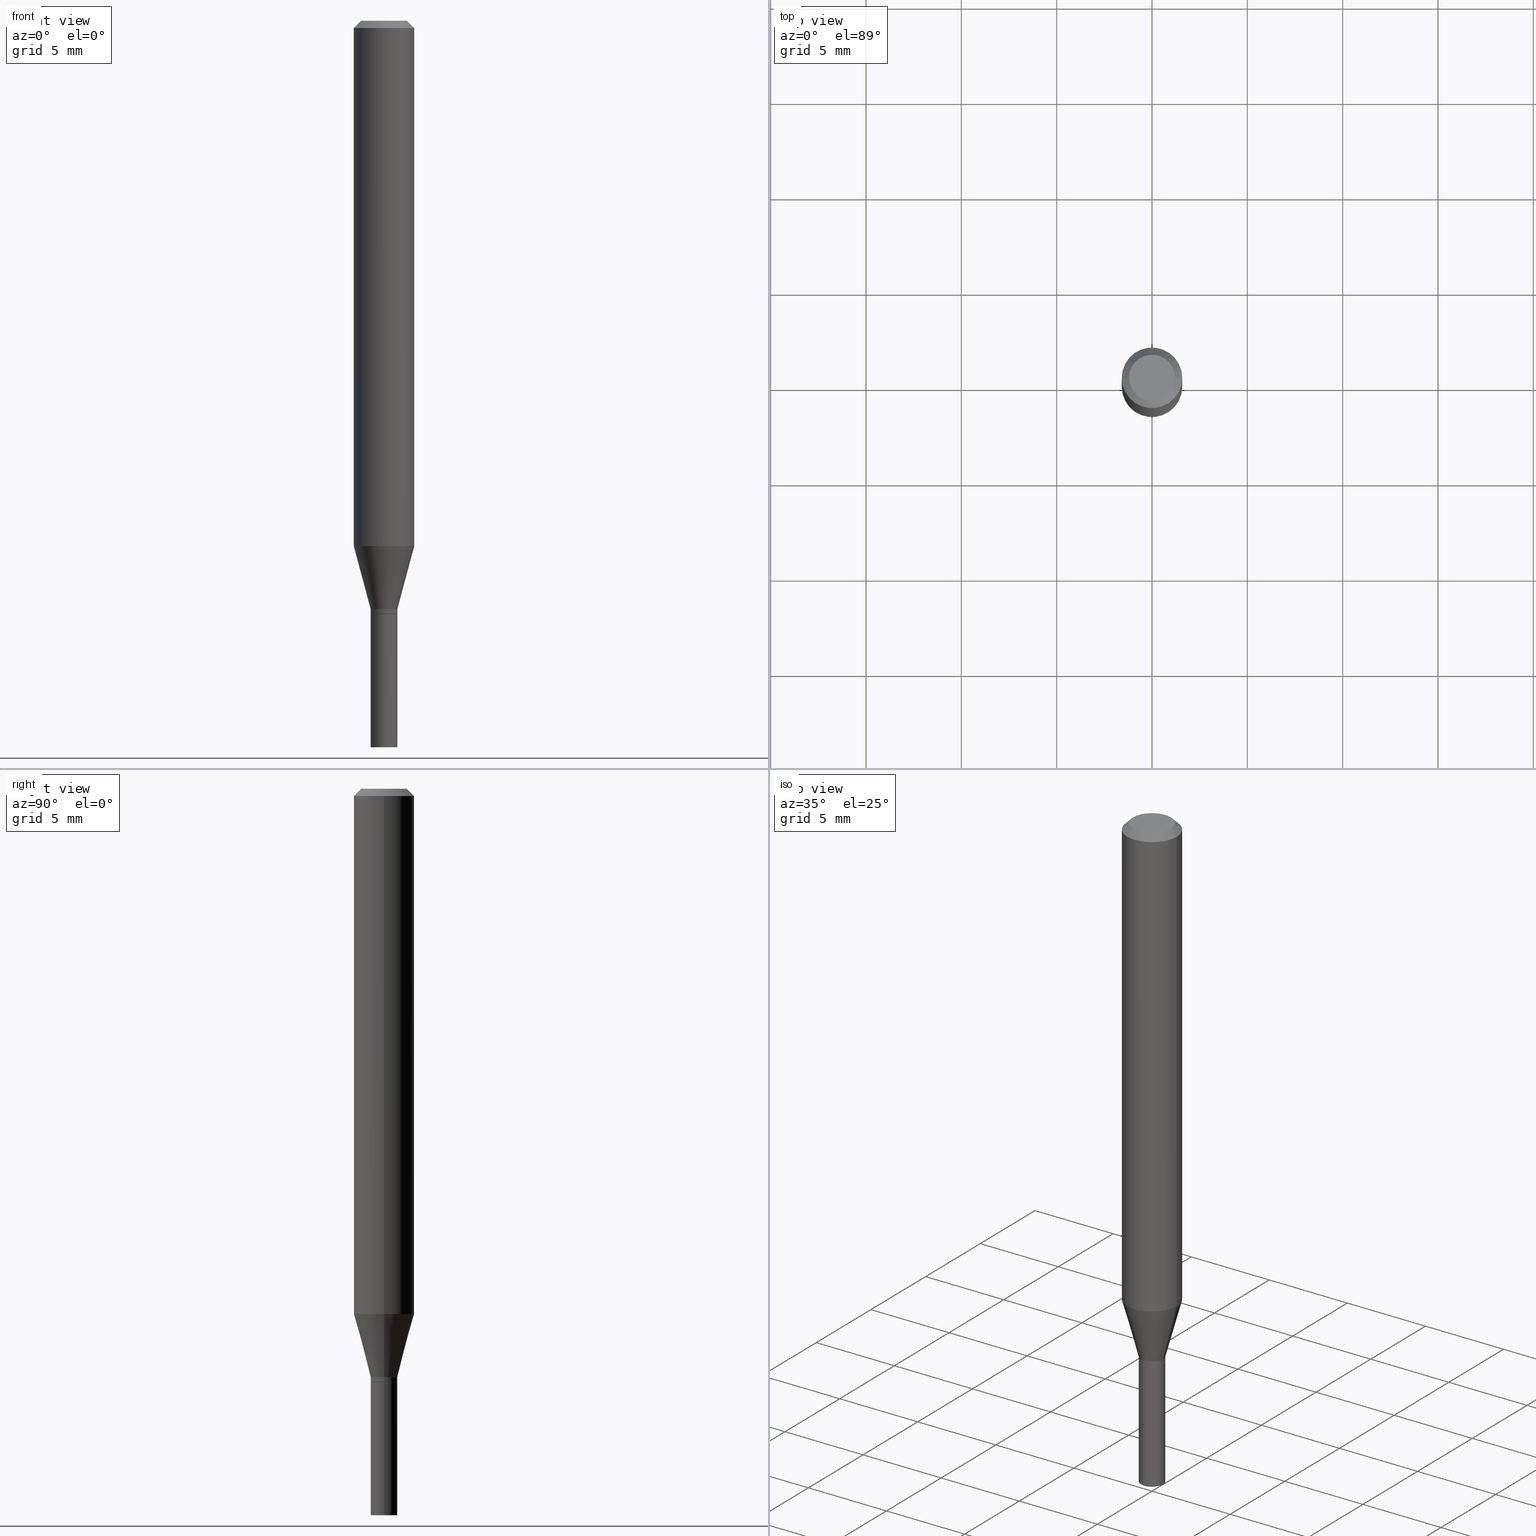
[diagram: canonical four-view strip — front | top / right | iso, engineering-drawing reading convention]
A machine part, canonical four-view strip (front | top / right | iso — engineering-drawing reading convention). The complete STEP part file that produces these views, byte-faithful:
ISO-10303-21;
HEADER;
FILE_DESCRIPTION (( 'STEP AP203' ),
    '1' );
FILE_NAME ('02651.STEP',
    '2024-03-18T21:05:56',
    ( '' ),
    ( '' ),
    'SwSTEP 2.0',
    'SolidWorks 2023',
    '' );
FILE_SCHEMA (( 'CONFIG_CONTROL_DESIGN' ));
ENDSEC;

DATA;
#1 = ORIENTED_EDGE ( 'NONE', *, *, #281, .F. ) ;
#2 = ORIENTED_EDGE ( 'NONE', *, *, #94, .T. ) ;
#3 = ADVANCED_FACE ( 'NONE', ( #403 ), #16, .T. ) ;
#4 = ORIENTED_EDGE ( 'NONE', *, *, #83, .F. ) ;
#5 = DIRECTION ( 'NONE',  ( 2.445468806185136597E-29, -3.491481338843145583E-15, -1.000000000000000000 ) ) ;
#6 = ORIENTED_EDGE ( 'NONE', *, *, #69, .T. ) ;
#7 = AXIS2_PLACEMENT_3D ( 'NONE', #54, #225, #46 ) ;
#8 = LOCAL_TIME ( 17, 5, 56.00000000000000000, #47 ) ;
#9 = ORIENTED_EDGE ( 'NONE', *, *, #20, .T. ) ;
#10 = CARTESIAN_POINT ( 'NONE',  ( -0.02699999999999999969, -4.085218101427626128E-15, -1.225000000000000089 ) ) ;
#11 = CARTESIAN_POINT ( 'NONE',  ( 0.000000000000000000, 0.000000000000000000, 0.000000000000000000 ) ) ;
#12 = ORIENTED_EDGE ( 'NONE', *, *, #363, .F. ) ;
#13 = EDGE_CURVE ( 'NONE', #367, #176, #313, .T. ) ;
#14 = EDGE_LOOP ( 'NONE', ( #34, #220, #256, #105 ) ) ;
#15 = APPROVAL_STATUS ( 'not_yet_approved' ) ;
#16 = CONICAL_SURFACE ( 'NONE', #128, 0.02750000000000006953, 0.2617993877991501850 ) ;
#17 = FACE_OUTER_BOUND ( 'NONE', #440, .T. ) ;
#18 = DATE_AND_TIME ( #191, #8 ) ;
#19 = CARTESIAN_POINT ( 'NONE',  ( 1.920314736364022965E-16, 0.02749999999999572578, -1.225000000000000089 ) ) ;
#20 = EDGE_CURVE ( 'NONE', #398, #40, #162, .T. ) ;
#21 = DIRECTION ( 'NONE',  ( 1.000000000000000000, -6.982962677686280121E-15, 0.000000000000000000 ) ) ;
#22 = LINE ( 'NONE', #425, #67 ) ;
#23 = PLANE ( 'NONE',  #387 ) ;
#24 = CARTESIAN_POINT ( 'NONE',  ( 0.02750000000000000014, -1.920314736363723444E-16, 1.340948613343882413E-30 ) ) ;
#25 = SHAPE_DEFINITION_REPRESENTATION ( #351, #390 ) ;
#26 = UNCERTAINTY_MEASURE_WITH_UNIT (LENGTH_MEASURE( 1.000000000000000082E-05 ), #260, 'distance_accuracy_value', 'NONE');
#27 = CARTESIAN_POINT ( 'NONE',  ( 2.995699287576792443E-29, -4.277064640082853349E-15, -1.225000000000000089 ) ) ;
#28 = ADVANCED_FACE ( 'NONE', ( #90 ), #41, .T. ) ;
#29 = CARTESIAN_POINT ( 'NONE',  ( 0.000000000000000000, 0.000000000000000000, 0.000000000000000000 ) ) ;
#30 = CIRCLE ( 'NONE', #251, 0.06250000000000000000 ) ;
#31 = AXIS2_PLACEMENT_3D ( 'NONE', #366, #188, #408 ) ;
#32 = EDGE_CURVE ( 'NONE', #207, #244, #360, .T. ) ;
#33 = ORIENTED_EDGE ( 'NONE', *, *, #255, .F. ) ;
#34 = ORIENTED_EDGE ( 'NONE', *, *, #32, .T. ) ;
#35 = CARTESIAN_POINT ( 'NONE',  ( 2.971244599514940898E-29, -4.242149826694421699E-15, -1.215000000000000080 ) ) ;
#36 = ORIENTED_EDGE ( 'NONE', *, *, #13, .T. ) ;
#37 = FACE_OUTER_BOUND ( 'NONE', #117, .T. ) ;
#38 = ORIENTED_EDGE ( 'NONE', *, *, #402, .F. ) ;
#39 = ORIENTED_EDGE ( 'NONE', *, *, #413, .F. ) ;
#40 = VERTEX_POINT ( 'NONE', #352 ) ;
#41 = CONICAL_SURFACE ( 'NONE', #218, 0.02699999999999999969, 0.7853981633974739252 ) ;
#42 = FACE_OUTER_BOUND ( 'NONE', #63, .T. ) ;
#43 = FACE_OUTER_BOUND ( 'NONE', #173, .T. ) ;
#44 = ORIENTED_EDGE ( 'NONE', *, *, #32, .F. ) ;
#45 = DATE_TIME_ROLE ( 'creation_date' ) ;
#46 = DIRECTION ( 'NONE',  ( 1.000000000000000000, -6.982962677686266711E-15, 4.876176775795935793E-29 ) ) ;
#47 = COORDINATED_UNIVERSAL_TIME_OFFSET ( 5, 0, .BEHIND. ) ;
#48 = AXIS2_PLACEMENT_3D ( 'NONE', #193, #306, #274 ) ;
#49 = CARTESIAN_POINT ( 'NONE',  ( 0.06250000000000000000, -4.222521492791372833E-15, -1.084378221735089909 ) ) ;
#50 = ADVANCED_FACE ( 'NONE', ( #134 ), #312, .T. ) ;
#51 = DIRECTION ( 'NONE',  ( 1.000000000000000000, -6.982962677686279332E-15, 0.000000000000000000 ) ) ;
#52 = PLANE ( 'NONE',  #140 ) ;
#53 = CC_DESIGN_PERSON_AND_ORGANIZATION_ASSIGNMENT ( #124, #266, ( #409 ) ) ;
#54 = CARTESIAN_POINT ( 'NONE',  ( 0.000000000000000000, 0.000000000000000000, 0.000000000000000000 ) ) ;
#55 = DIRECTION ( 'NONE',  ( -2.445468806185136597E-29, 3.491481338843145583E-15, 1.000000000000000000 ) ) ;
#56 = DIRECTION ( 'NONE',  ( -2.445468806185136597E-29, 3.491481338843145583E-15, 1.000000000000000000 ) ) ;
#57 = DIRECTION ( 'NONE',  ( -2.445468806185136597E-29, 3.491481338843145583E-15, 1.000000000000000000 ) ) ;
#58 = AXIS2_PLACEMENT_3D ( 'NONE', #235, #310, #200 ) ;
#59 = DIRECTION ( 'NONE',  ( -2.445468806185136597E-29, 3.491481338843145583E-15, 1.000000000000000000 ) ) ;
#60 = FACE_OUTER_BOUND ( 'NONE', #459, .T. ) ;
#61 = CIRCLE ( 'NONE', #445, 0.02750000000000006259 ) ;
#62 = AXIS2_PLACEMENT_3D ( 'NONE', #35, #76, #147 ) ;
#63 = EDGE_LOOP ( 'NONE', ( #39, #400, #73, #289 ) ) ;
#64 = CIRCLE ( 'NONE', #249, 0.02750000000000006953 ) ;
#65 = VECTOR ( 'NONE', #233, 39.37007874015748143 ) ;
#66 = DIRECTION ( 'NONE',  ( -2.445468806185136597E-29, 3.491481338843145583E-15, 1.000000000000000000 ) ) ;
#67 = VECTOR ( 'NONE', #197, 39.37007874015748143 ) ;
#68 = DIRECTION ( 'NONE',  ( -2.445468806185136597E-29, 3.491481338843145583E-15, 1.000000000000000000 ) ) ;
#69 = EDGE_CURVE ( 'NONE', #207, #398, #453, .T. ) ;
#70 = DIRECTION ( 'NONE',  ( 1.000000000000000000, -6.982962677686266711E-15, 0.000000000000000000 ) ) ;
#71 = ORIENTED_EDGE ( 'NONE', *, *, #145, .F. ) ;
#72 =( LENGTH_UNIT ( ) NAMED_UNIT ( * ) SI_UNIT ( $, .METRE. ) );
#73 = ORIENTED_EDGE ( 'NONE', *, *, #231, .T. ) ;
#74 = PERSON_AND_ORGANIZATION ( #283, #314 ) ;
#75 = EDGE_LOOP ( 'NONE', ( #38, #321 ) ) ;
#76 = DIRECTION ( 'NONE',  ( -2.445468806185136597E-29, 3.491481338843145583E-15, 1.000000000000000000 ) ) ;
#77 = AXIS2_PLACEMENT_3D ( 'NONE', #131, #386, #282 ) ;
#78 = CALENDAR_DATE ( 2024, 18, 3 ) ;
#79 = ADVANCED_FACE ( 'NONE', ( #60 ), #350, .F. ) ;
#80 = ORIENTED_EDGE ( 'NONE', *, *, #166, .F. ) ;
#81 = FACE_OUTER_BOUND ( 'NONE', #154, .T. ) ;
#82 = CARTESIAN_POINT ( 'NONE',  ( 2.994476553173699642E-29, -4.275318899413431845E-15, -1.224499999999999922 ) ) ;
#83 = EDGE_CURVE ( 'NONE', #176, #367, #236, .T. ) ;
#84 = CARTESIAN_POINT ( 'NONE',  ( 0.02699999999999999969, -4.465604632380382834E-15, -1.225000000000000089 ) ) ;
#85 = CLOSED_SHELL ( 'NONE', ( #412, #334, #50, #136 ) ) ;
#86 = DIRECTION ( 'NONE',  ( 1.000000000000000000, -6.982962677686266711E-15, 4.876176775795935793E-29 ) ) ;
#87 = PRODUCT_DEFINITION_FORMATION_WITH_SPECIFIED_SOURCE ( 'ANY', '', #284, .NOT_KNOWN. ) ;
#88 = CARTESIAN_POINT ( 'NONE',  ( -0.06250000000000000000, 3.840629472727444916E-16, -0.01499999999999999944 ) ) ;
#89 = CARTESIAN_POINT ( 'NONE',  ( -0.06250000000000000000, -1.475140062909251703E-15, -0.01499999999999999944 ) ) ;
#90 = FACE_OUTER_BOUND ( 'NONE', #433, .T. ) ;
#91 = FACE_OUTER_BOUND ( 'NONE', #14, .T. ) ;
#92 = DATE_AND_TIME ( #142, #198 ) ;
#93 = FACE_OUTER_BOUND ( 'NONE', #139, .T. ) ;
#94 = EDGE_CURVE ( 'NONE', #99, #295, #172, .T. ) ;
#95 = AXIS2_PLACEMENT_3D ( 'NONE', #328, #5, #337 ) ;
#96 = DIRECTION ( 'NONE',  ( -2.445468806185136597E-29, 3.491481338843145583E-15, 1.000000000000000000 ) ) ;
#97 = DIRECTION ( 'NONE',  ( 1.000000000000000000, -6.982962677686266711E-15, 4.876176775795935793E-29 ) ) ;
#98 = EDGE_CURVE ( 'NONE', #99, #296, #203, .T. ) ;
#99 = VERTEX_POINT ( 'NONE', #309 ) ;
#100 = CONICAL_SURFACE ( 'NONE', #339, 0.06250000000000000000, 0.7853981633974636001 ) ;
#101 = CONICAL_SURFACE ( 'NONE', #95, 0.06250000000000000000, 0.7853981633974636001 ) ;
#102 = VERTEX_POINT ( 'NONE', #89 ) ;
#103 = MECHANICAL_CONTEXT ( 'NONE', #288, 'mechanical' ) ;
#104 = CARTESIAN_POINT ( 'NONE',  ( 1.116338794773660675E-44, -1.593835938500131952E-30, -4.564927558880287530E-16 ) ) ;
#105 = ORIENTED_EDGE ( 'NONE', *, *, #69, .F. ) ;
#106 = EDGE_CURVE ( 'NONE', #213, #404, #416, .T. ) ;
#107 = DIRECTION ( 'NONE',  ( -2.445468806185136597E-29, 3.491481338843145583E-15, 1.000000000000000000 ) ) ;
#108 = CIRCLE ( 'NONE', #434, 0.04749999999999999362 ) ;
#109 = CONICAL_SURFACE ( 'NONE', #62, 0.02750000000000006953, 0.2617993877991501850 ) ;
#110 = DIRECTION ( 'NONE',  ( -2.445468806185136877E-29, 3.491481338843145188E-15, 1.000000000000000000 ) ) ;
#111 = ORIENTED_EDGE ( 'NONE', *, *, #180, .F. ) ;
#112 = CARTESIAN_POINT ( 'NONE',  ( 0.000000000000000000, 0.000000000000000000, 0.000000000000000000 ) ) ;
#113 = DIRECTION ( 'NONE',  ( 1.000000000000000000, -6.982962677686266711E-15, 0.000000000000000000 ) ) ;
#114 = ORIENTED_EDGE ( 'NONE', *, *, #180, .T. ) ;
#115 = DIRECTION ( 'NONE',  ( 1.000000000000000000, -6.982962677686280121E-15, 0.000000000000000000 ) ) ;
#116 = ORIENTED_EDGE ( 'NONE', *, *, #356, .F. ) ;
#117 = EDGE_LOOP ( 'NONE', ( #357, #370, #4, #174 ) ) ;
#118 = COORDINATED_UNIVERSAL_TIME_OFFSET ( 5, 0, .BEHIND. ) ;
#119 =( NAMED_UNIT ( * ) SI_UNIT ( $, .STERADIAN. ) SOLID_ANGLE_UNIT ( ) );
#120 = EDGE_LOOP ( 'NONE', ( #322, #371, #359, #80 ) ) ;
#121 = VECTOR ( 'NONE', #379, 39.37007874015748143 ) ;
#122 = CALENDAR_DATE ( 2024, 18, 3 ) ;
#123 = ADVANCED_FACE ( 'NONE', ( #81 ), #450, .T. ) ;
#124 = PERSON_AND_ORGANIZATION ( #283, #314 ) ;
#125 = MANIFOLD_SOLID_BREP ( 'Body-Move/Copy2[1]', #85 ) ;
#126 = DIRECTION ( 'NONE',  ( 0.7071067811865583419, -7.319954787623292333E-15, -0.7071067811865366926 ) ) ;
#127 = DIRECTION ( 'NONE',  ( -2.438088387897960049E-29, 3.491481338843145188E-15, 1.000000000000000000 ) ) ;
#128 = AXIS2_PLACEMENT_3D ( 'NONE', #184, #66, #151 ) ;
#129 = ORIENTED_EDGE ( 'NONE', *, *, #189, .F. ) ;
#130 = CARTESIAN_POINT ( 'NONE',  ( 2.995699287576792443E-29, -4.277064640082853349E-15, -1.225000000000000089 ) ) ;
#131 = CARTESIAN_POINT ( 'NONE',  ( 3.316907271900976096E-16, 0.04749999999999999362, -3.940917415390638222E-16 ) ) ;
#132 = CARTESIAN_POINT ( 'NONE',  ( 2.994476553173699642E-29, -4.275318899413431845E-15, -1.224499999999999922 ) ) ;
#133 = AXIS2_PLACEMENT_3D ( 'NONE', #181, #68, #326 ) ;
#134 = FACE_OUTER_BOUND ( 'NONE', #394, .T. ) ;
#135 = VECTOR ( 'NONE', #455, 39.37007874015748143 ) ;
#136 = ADVANCED_FACE ( 'NONE', ( #17 ), #52, .F. ) ;
#137 = APPROVAL_STATUS ( 'not_yet_approved' ) ;
#138 = CC_DESIGN_PERSON_AND_ORGANIZATION_ASSIGNMENT ( #305, #447, ( #87 ) ) ;
#139 = EDGE_LOOP ( 'NONE', ( #446, #36, #401, #438 ) ) ;
#140 = AXIS2_PLACEMENT_3D ( 'NONE', #19, #229, #275 ) ;
#141 = LOCAL_TIME ( 17, 5, 56.00000000000000000, #382 ) ;
#142 = CALENDAR_DATE ( 2024, 18, 3 ) ;
#143 = ORIENTED_EDGE ( 'NONE', *, *, #373, .T. ) ;
#144 = ORIENTED_EDGE ( 'NONE', *, *, #413, .T. ) ;
#145 = EDGE_CURVE ( 'NONE', #176, #404, #267, .T. ) ;
#146 = ORIENTED_EDGE ( 'NONE', *, *, #396, .T. ) ;
#147 = DIRECTION ( 'NONE',  ( 1.000000000000000000, -6.982962677686280121E-15, 0.000000000000000000 ) ) ;
#148 = VECTOR ( 'NONE', #253, 39.37007874015748143 ) ;
#149 = CARTESIAN_POINT ( 'NONE',  ( 2.995699287576792443E-29, -4.277064640082853349E-15, -1.225000000000000089 ) ) ;
#150 = DIMENSIONAL_EXPONENTS ( 1.000000000000000000, 0.000000000000000000, 0.000000000000000000, 0.000000000000000000, 0.000000000000000000, 0.000000000000000000, 0.000000000000000000 ) ;
#151 = DIRECTION ( 'NONE',  ( 1.000000000000000000, -6.982962677686280121E-15, 0.000000000000000000 ) ) ;
#152 = CYLINDRICAL_SURFACE ( 'NONE', #133, 0.02750000000000006606 ) ;
#153 = DIRECTION ( 'NONE',  ( -2.445468806185136597E-29, 3.491481338843145583E-15, 1.000000000000000000 ) ) ;
#154 = EDGE_LOOP ( 'NONE', ( #247, #143, #205, #71 ) ) ;
#155 = CIRCLE ( 'NONE', #424, 0.06250000000000000000 ) ;
#156 = APPROVAL_PERSON_ORGANIZATION ( #323, #422, #268 ) ;
#157 = DIRECTION ( 'NONE',  ( -1.000000000000000000, 6.982962677686266711E-15, 0.000000000000000000 ) ) ;
#158 = ADVANCED_FACE ( 'NONE', ( #342 ), #100, .T. ) ;
#159 = DIRECTION ( 'NONE',  ( 1.000000000000000000, -6.982962677686263555E-15, 0.000000000000000000 ) ) ;
#160 = FACE_OUTER_BOUND ( 'NONE', #327, .T. ) ;
#161 = CARTESIAN_POINT ( 'NONE',  ( -0.02750000000000000014, 1.953992523340275521E-16, -1.352707149820099181E-30 ) ) ;
#162 = CIRCLE ( 'NONE', #353, 0.02750000000000000014 ) ;
#163 = DIRECTION ( 'NONE',  ( -2.445468806185136877E-29, 3.491481338843145188E-15, 1.000000000000000000 ) ) ;
#164 = DIRECTION ( 'NONE',  ( -2.445468806185136877E-29, 3.491481338843145188E-15, 1.000000000000000000 ) ) ;
#165 = DIRECTION ( 'NONE',  ( 1.000000000000000000, -6.982962677686262766E-15, 0.000000000000000000 ) ) ;
#166 = EDGE_CURVE ( 'NONE', #318, #102, #194, .T. ) ;
#167 = CARTESIAN_POINT ( 'NONE',  ( 0.000000000000000000, 0.000000000000000000, 0.000000000000000000 ) ) ;
#168 = VECTOR ( 'NONE', #126, 39.37007874015748143 ) ;
#169 = ORIENTED_EDGE ( 'NONE', *, *, #271, .F. ) ;
#170 = CC_DESIGN_DATE_AND_TIME_ASSIGNMENT ( #376, #45, ( #241 ) ) ;
#171 = VERTEX_POINT ( 'NONE', #344 ) ;
#172 = CIRCLE ( 'NONE', #457, 0.02750000000000006259 ) ;
#173 = EDGE_LOOP ( 'NONE', ( #178, #2, #377, #129 ) ) ;
#174 = ORIENTED_EDGE ( 'NONE', *, *, #195, .F. ) ;
#175 = CARTESIAN_POINT ( 'NONE',  ( -0.02699999999999999969, -4.082568874253514927E-15, -1.225000000000000089 ) ) ;
#176 = VERTEX_POINT ( 'NONE', #49 ) ;
#177 = FACE_OUTER_BOUND ( 'NONE', #246, .T. ) ;
#178 = ORIENTED_EDGE ( 'NONE', *, *, #98, .F. ) ;
#179 = PERSON_AND_ORGANIZATION ( #283, #314 ) ;
#180 = EDGE_CURVE ( 'NONE', #295, #99, #61, .T. ) ;
#181 = CARTESIAN_POINT ( 'NONE',  ( 0.000000000000000000, 0.000000000000000000, 0.000000000000000000 ) ) ;
#182 = AXIS2_PLACEMENT_3D ( 'NONE', #448, #383, #21 ) ;
#183 = CC_DESIGN_SECURITY_CLASSIFICATION ( #409, ( #87 ) ) ;
#184 = CARTESIAN_POINT ( 'NONE',  ( 2.971244599514940898E-29, -4.242149826694421699E-15, -1.215000000000000080 ) ) ;
#185 = DIRECTION ( 'NONE',  ( 1.000000000000000000, -6.982962677686267499E-15, 4.852736867747366768E-29 ) ) ;
#186 = CYLINDRICAL_SURFACE ( 'NONE', #243, 0.02750000000000006606 ) ;
#187 = CARTESIAN_POINT ( 'NONE',  ( 2.651813115359671942E-29, -3.786086325435981164E-15, -1.084378221735089909 ) ) ;
#188 = DIRECTION ( 'NONE',  ( -2.445468806185136597E-29, 3.491481338843145583E-15, 1.000000000000000000 ) ) ;
#189 = EDGE_CURVE ( 'NONE', #296, #171, #345, .T. ) ;
#190 = AXIS2_PLACEMENT_3D ( 'NONE', #384, #57, #293 ) ;
#191 = CALENDAR_DATE ( 2024, 18, 3 ) ;
#192 = FACE_OUTER_BOUND ( 'NONE', #75, .T. ) ;
#193 = CARTESIAN_POINT ( 'NONE',  ( 2.995699287576792443E-29, -4.277064640082853349E-15, -1.225000000000000089 ) ) ;
#194 = LINE ( 'NONE', #88, #65 ) ;
#195 = EDGE_CURVE ( 'NONE', #171, #176, #226, .T. ) ;
#196 = CARTESIAN_POINT ( 'NONE',  ( 0.02750000000000006953, -4.434181300330794981E-15, -1.215000000000000080 ) ) ;
#197 = DIRECTION ( 'NONE',  ( -2.445468806185136877E-29, 3.491481338843145188E-15, 1.000000000000000000 ) ) ;
#198 = LOCAL_TIME ( 17, 5, 56.00000000000000000, #317 ) ;
#199 = CYLINDRICAL_SURFACE ( 'NONE', #331, 0.06250000000000000000 ) ;
#200 = DIRECTION ( 'NONE',  ( 1.000000000000000000, -6.982962677686279332E-15, 0.000000000000000000 ) ) ;
#201 = APPROVAL_DATE_TIME ( #92, #465 ) ;
#202 = CARTESIAN_POINT ( 'NONE',  ( 3.668203209277704895E-29, -5.237222008264718177E-15, -1.500000000000000222 ) ) ;
#203 = LINE ( 'NONE', #381, #299 ) ;
#204 = PERSON_AND_ORGANIZATION_ROLE ( 'design_owner' ) ;
#205 = ORIENTED_EDGE ( 'NONE', *, *, #245, .F. ) ;
#206 = CC_DESIGN_APPROVAL ( #422, ( #87 ) ) ;
#207 = VERTEX_POINT ( 'NONE', #303 ) ;
#208 = ADVANCED_FACE ( 'NONE', ( #192 ), #23, .F. ) ;
#209 = CARTESIAN_POINT ( 'NONE',  ( 2.971244599514940898E-29, -4.242149826694421699E-15, -1.215000000000000080 ) ) ;
#210 = VECTOR ( 'NONE', #110, 39.37007874015748143 ) ;
#211 = DIRECTION ( 'NONE',  ( -2.445468806185136597E-29, 3.491481338843145583E-15, 1.000000000000000000 ) ) ;
#212 = ORIENTED_EDGE ( 'NONE', *, *, #98, .T. ) ;
#213 = VERTEX_POINT ( 'NONE', #436 ) ;
#214 = CARTESIAN_POINT ( 'NONE',  ( -0.02750000000000006953, -4.046750574360394369E-15, -1.215000000000000080 ) ) ;
#215 = ORIENTED_EDGE ( 'NONE', *, *, #302, .F. ) ;
#216 = ORIENTED_EDGE ( 'NONE', *, *, #298, .T. ) ;
#217 = CC_DESIGN_PERSON_AND_ORGANIZATION_ASSIGNMENT ( #426, #290, ( #87 ) ) ;
#218 = AXIS2_PLACEMENT_3D ( 'NONE', #27, #59, #420 ) ;
#219 = APPROVAL_PERSON_ORGANIZATION ( #179, #265, #332 ) ;
#220 = ORIENTED_EDGE ( 'NONE', *, *, #356, .T. ) ;
#221 = CARTESIAN_POINT ( 'NONE',  ( 0.02750000000000006259, -4.467350373049805126E-15, -1.224499999999999922 ) ) ;
#222 = VERTEX_POINT ( 'NONE', #175 ) ;
#223 = CARTESIAN_POINT ( 'NONE',  ( -0.02750000000000000014, -4.561744071839757644E-15, -1.500000000000000222 ) ) ;
#224 = ORIENTED_EDGE ( 'NONE', *, *, #106, .F. ) ;
#225 = DIRECTION ( 'NONE',  ( -2.445468806185136597E-29, 3.491481338843145583E-15, 1.000000000000000000 ) ) ;
#226 = LINE ( 'NONE', #196, #121 ) ;
#227 = PLANE ( 'NONE',  #355 ) ;
#228 = CIRCLE ( 'NONE', #31, 0.04749999999999999362 ) ;
#229 = DIRECTION ( 'NONE',  ( 2.438088387897960049E-29, -3.491481338843145188E-15, -1.000000000000000000 ) ) ;
#230 = DIRECTION ( 'NONE',  ( -2.438088387897960049E-29, 3.491481338843145188E-15, 1.000000000000000000 ) ) ;
#231 = EDGE_CURVE ( 'NONE', #324, #295, #374, .T. ) ;
#232 = DIRECTION ( 'NONE',  ( 1.000000000000000000, -6.982962677686262766E-15, 0.000000000000000000 ) ) ;
#233 = DIRECTION ( 'NONE',  ( -0.7071067811865583419, 2.468850131082370262E-15, -0.7071067811865366926 ) ) ;
#234 = CYLINDRICAL_SURFACE ( 'NONE', #190, 0.02750000000000000014 ) ;
#235 = CARTESIAN_POINT ( 'NONE',  ( 3.668203209277704895E-29, -5.237222008264718177E-15, -1.500000000000000222 ) ) ;
#236 = CIRCLE ( 'NONE', #392, 0.06250000000000000000 ) ;
#237 = CARTESIAN_POINT ( 'NONE',  ( 2.995699287576792443E-29, -4.277064640082853349E-15, -1.225000000000000089 ) ) ;
#238 = DIRECTION ( 'NONE',  ( -2.445468806185136597E-29, 3.491481338843145583E-15, 1.000000000000000000 ) ) ;
#239 = DIRECTION ( 'NONE',  ( -2.445468806185136597E-29, 3.491481338843145583E-15, 1.000000000000000000 ) ) ;
#240 = ADVANCED_FACE ( 'NONE', ( #43 ), #186, .T. ) ;
#241 = PRODUCT_DEFINITION ( 'UNKNOWN', '', #87, #278 ) ;
#242 = APPROVAL_ROLE ( '' ) ;
#243 = AXIS2_PLACEMENT_3D ( 'NONE', #11, #153, #442 ) ;
#244 = VERTEX_POINT ( 'NONE', #223 ) ;
#245 = EDGE_CURVE ( 'NONE', #404, #102, #155, .T. ) ;
#246 = EDGE_LOOP ( 'NONE', ( #224, #1, #336, #216 ) ) ;
#247 = ORIENTED_EDGE ( 'NONE', *, *, #83, .T. ) ;
#248 = APPLICATION_PROTOCOL_DEFINITION ( 'international standard', 'config_control_design', 1994, #288 ) ;
#249 = AXIS2_PLACEMENT_3D ( 'NONE', #209, #375, #115 ) ;
#250 = FACE_OUTER_BOUND ( 'NONE', #329, .T. ) ;
#251 = AXIS2_PLACEMENT_3D ( 'NONE', #292, #257, #70 ) ;
#252 = EDGE_LOOP ( 'NONE', ( #215, #316, #464, #369 ) ) ;
#253 = DIRECTION ( 'NONE',  ( -0.7071067811865656694, 7.493145998870420424E-15, 0.7071067811865294761 ) ) ;
#254 = DIRECTION ( 'NONE',  ( 0.7071067811865656694, -2.468850131082446387E-15, 0.7071067811865294761 ) ) ;
#255 = EDGE_CURVE ( 'NONE', #295, #171, #466, .T. ) ;
#256 = ORIENTED_EDGE ( 'NONE', *, *, #20, .F. ) ;
#257 = DIRECTION ( 'NONE',  ( -2.445468806185136597E-29, 3.491481338843145583E-15, 1.000000000000000000 ) ) ;
#258 = ORIENTED_EDGE ( 'NONE', *, *, #432, .T. ) ;
#259 = APPLICATION_PROTOCOL_DEFINITION ( 'international standard', 'config_control_design', 1994, #395 ) ;
#260 =( CONVERSION_BASED_UNIT ( 'INCH', #333 ) LENGTH_UNIT ( ) NAMED_UNIT ( #150 ) );
#261 = ORIENTED_EDGE ( 'NONE', *, *, #396, .F. ) ;
#262 = APPROVAL_STATUS ( 'not_yet_approved' ) ;
#263 = CARTESIAN_POINT ( 'NONE',  ( 3.668203209277705088E-31, -5.237222008264718399E-17, -0.01499999999999999944 ) ) ;
#264 = AXIS2_PLACEMENT_3D ( 'NONE', #130, #238, #348 ) ;
#265 = APPROVAL ( #15, 'UNSPECIFIED' ) ;
#266 = PERSON_AND_ORGANIZATION_ROLE ( 'classification_officer' ) ;
#267 = LINE ( 'NONE', #411, #272 ) ;
#268 = APPROVAL_ROLE ( '' ) ;
#269 = CARTESIAN_POINT ( 'NONE',  ( 2.995699287576792443E-29, -4.277064640082853349E-15, -1.225000000000000089 ) ) ;
#270 = DIRECTION ( 'NONE',  ( 1.000000000000000000, -6.982962677686265922E-15, 4.876176775795935793E-29 ) ) ;
#271 = EDGE_CURVE ( 'NONE', #171, #296, #64, .T. ) ;
#272 = VECTOR ( 'NONE', #378, 39.37007874015748143 ) ;
#273 = APPROVAL_PERSON_ORGANIZATION ( #354, #465, #242 ) ;
#274 = DIRECTION ( 'NONE',  ( 1.000000000000000000, -6.982962677686279332E-15, 0.000000000000000000 ) ) ;
#275 = DIRECTION ( 'NONE',  ( -1.000000000000000000, 6.982962677686265922E-15, -4.876176775795935793E-29 ) ) ;
#276 = DIRECTION ( 'NONE',  ( -2.445468806185136597E-29, 3.491481338843145583E-15, 1.000000000000000000 ) ) ;
#277 = DIRECTION ( 'NONE',  ( 1.000000000000000000, -6.982962677686262766E-15, 0.000000000000000000 ) ) ;
#278 = DESIGN_CONTEXT ( 'detailed design', #395, 'design' ) ;
#279 = VECTOR ( 'NONE', #254, 39.37007874015748143 ) ;
#280 = DIRECTION ( 'NONE',  ( -2.445468806185136597E-29, 3.491481338843145583E-15, 1.000000000000000000 ) ) ;
#281 = EDGE_CURVE ( 'NONE', #318, #213, #108, .T. ) ;
#282 = DIRECTION ( 'NONE',  ( -1.000000000000000000, 6.982962677686265922E-15, -4.876176775795935793E-29 ) ) ;
#283 = PERSON ( 'UNSPECIFIED', 'UNSPECIFIED', 'UNSPECIFIED', ('UNSPECIFIED'), ('UNSPECIFIED'), ('UNSPECIFIED') ) ;
#284 = PRODUCT ( '02651', '02651', '', ( #103 ) ) ;
#285 = ADVANCED_FACE ( 'NONE', ( #37 ), #109, .T. ) ;
#286 = CLOSED_SHELL ( 'NONE', ( #461, #28, #158, #123, #285, #3, #385, #311, #79, #208, #437, #240 ) ) ;
#287 = LOCAL_TIME ( 17, 5, 56.00000000000000000, #118 ) ;
#288 = APPLICATION_CONTEXT ( 'configuration controlled 3d designs of mechanical parts and assemblies' ) ;
#289 = ORIENTED_EDGE ( 'NONE', *, *, #94, .F. ) ;
#290 = PERSON_AND_ORGANIZATION_ROLE ( 'creator' ) ;
#291 = DIRECTION ( 'NONE',  ( 1.000000000000000000, -6.982962677686262766E-15, 0.000000000000000000 ) ) ;
#292 = CARTESIAN_POINT ( 'NONE',  ( 3.668203209277705088E-31, -5.237222008264718399E-17, -0.01499999999999999944 ) ) ;
#293 = DIRECTION ( 'NONE',  ( 1.000000000000000000, -6.982962677686266711E-15, 4.876176775795935793E-29 ) ) ;
#294 = CC_DESIGN_APPROVAL ( #265, ( #241 ) ) ;
#295 = VERTEX_POINT ( 'NONE', #221 ) ;
#296 = VERTEX_POINT ( 'NONE', #463 ) ;
#297 = DIRECTION ( 'NONE',  ( -2.445468806185136597E-29, 3.491481338843145583E-15, 1.000000000000000000 ) ) ;
#298 = EDGE_CURVE ( 'NONE', #102, #404, #30, .T. ) ;
#299 = VECTOR ( 'NONE', #163, 39.37007874015748143 ) ;
#300 = CIRCLE ( 'NONE', #346, 0.02750000000000000014 ) ;
#301 = CARTESIAN_POINT ( 'NONE',  ( 3.668203209277705088E-31, -5.237222008264718399E-17, -0.01499999999999999944 ) ) ;
#302 = EDGE_CURVE ( 'NONE', #296, #367, #407, .T. ) ;
#303 = CARTESIAN_POINT ( 'NONE',  ( 0.02750000000000000014, -5.429253481901091458E-15, -1.500000000000000222 ) ) ;
#304 = CARTESIAN_POINT ( 'NONE',  ( 3.576687321579069994E-29, -5.368277968210015545E-15, -1.500000000000000222 ) ) ;
#305 = PERSON_AND_ORGANIZATION ( #283, #314 ) ;
#306 = DIRECTION ( 'NONE',  ( -2.445468806185136597E-29, 3.491481338843145583E-15, 1.000000000000000000 ) ) ;
#307 = AXIS2_PLACEMENT_3D ( 'NONE', #29, #55, #97 ) ;
#308 = AXIS2_PLACEMENT_3D ( 'NONE', #202, #276, #51 ) ;
#309 = CARTESIAN_POINT ( 'NONE',  ( -0.02750000000000006259, -4.079919647079403726E-15, -1.224499999999999922 ) ) ;
#310 = DIRECTION ( 'NONE',  ( -2.445468806185136597E-29, 3.491481338843145583E-15, 1.000000000000000000 ) ) ;
#311 = ADVANCED_FACE ( 'NONE', ( #177 ), #101, .T. ) ;
#312 = CYLINDRICAL_SURFACE ( 'NONE', #307, 0.02750000000000000014 ) ;
#313 = CIRCLE ( 'NONE', #429, 0.06250000000000000000 ) ;
#314 = ORGANIZATION ( 'UNSPECIFIED', 'UNSPECIFIED', '' ) ;
#315 = CARTESIAN_POINT ( 'NONE',  ( -0.06250000000000000000, -3.341997115585918942E-15, -1.084378221735089909 ) ) ;
#316 = ORIENTED_EDGE ( 'NONE', *, *, #189, .T. ) ;
#317 = COORDINATED_UNIVERSAL_TIME_OFFSET ( 5, 0, .BEHIND. ) ;
#318 = VERTEX_POINT ( 'NONE', #414 ) ;
#319 = VECTOR ( 'NONE', #164, 39.37007874015748143 ) ;
#320 = CONICAL_SURFACE ( 'NONE', #341, 0.02699999999999999969, 0.7853981633974739252 ) ;
#321 = ORIENTED_EDGE ( 'NONE', *, *, #389, .F. ) ;
#322 = ORIENTED_EDGE ( 'NONE', *, *, #432, .F. ) ;
#323 = PERSON_AND_ORGANIZATION ( #283, #314 ) ;
#324 = VERTEX_POINT ( 'NONE', #84 ) ;
#325 = CC_DESIGN_PERSON_AND_ORGANIZATION_ASSIGNMENT ( #391, #204, ( #284 ) ) ;
#326 = DIRECTION ( 'NONE',  ( 1.000000000000000000, -6.982962677686266711E-15, 4.876176775795935793E-29 ) ) ;
#327 = EDGE_LOOP ( 'NONE', ( #44, #261 ) ) ;
#328 = CARTESIAN_POINT ( 'NONE',  ( 3.668203209277705088E-31, -5.237222008264718399E-17, -0.01499999999999999944 ) ) ;
#329 = EDGE_LOOP ( 'NONE', ( #114, #212, #169, #33 ) ) ;
#330 = DATE_AND_TIME ( #122, #435 ) ;
#331 = AXIS2_PLACEMENT_3D ( 'NONE', #167, #96, #86 ) ;
#332 = APPROVAL_ROLE ( '' ) ;
#333 = LENGTH_MEASURE_WITH_UNIT ( LENGTH_MEASURE( 0.02539999999999999897 ), #72 );
#334 = ADVANCED_FACE ( 'NONE', ( #160 ), #227, .F. ) ;
#335 = DIRECTION ( 'NONE',  ( 1.000000000000000000, -6.982962677686279332E-15, 0.000000000000000000 ) ) ;
#336 = ORIENTED_EDGE ( 'NONE', *, *, #166, .T. ) ;
#337 = DIRECTION ( 'NONE',  ( -1.000000000000000000, 6.982962677686266711E-15, 0.000000000000000000 ) ) ;
#338 = DIRECTION ( 'NONE',  ( 2.445468806185136597E-29, -3.491481338843145583E-15, -1.000000000000000000 ) ) ;
#339 = AXIS2_PLACEMENT_3D ( 'NONE', #301, #338, #157 ) ;
#340 = CIRCLE ( 'NONE', #308, 0.02750000000000000014 ) ;
#341 = AXIS2_PLACEMENT_3D ( 'NONE', #149, #107, #335 ) ;
#342 = FACE_OUTER_BOUND ( 'NONE', #120, .T. ) ;
#343 = DIRECTION ( 'NONE',  ( -2.445468806185136597E-29, 3.491481338843145583E-15, 1.000000000000000000 ) ) ;
#344 = CARTESIAN_POINT ( 'NONE',  ( 0.02750000000000006953, -4.434181300330794981E-15, -1.215000000000000080 ) ) ;
#345 = CIRCLE ( 'NONE', #182, 0.02750000000000006953 ) ;
#346 = AXIS2_PLACEMENT_3D ( 'NONE', #269, #280, #232 ) ;
#347 = CARTESIAN_POINT ( 'NONE',  ( 2.651813115359671942E-29, -3.786086325435981164E-15, -1.084378221735089909 ) ) ;
#348 = DIRECTION ( 'NONE',  ( 1.000000000000000000, -6.982962677686279332E-15, 0.000000000000000000 ) ) ;
#349 = APPROVAL_DATE_TIME ( #452, #422 ) ;
#350 = PLANE ( 'NONE',  #77 ) ;
#351 = PRODUCT_DEFINITION_SHAPE ( 'NONE', 'NONE',  #241 ) ;
#352 = CARTESIAN_POINT ( 'NONE',  ( -0.02750000000000000014, -4.561744071839757644E-15, -1.225000000000000089 ) ) ;
#353 = AXIS2_PLACEMENT_3D ( 'NONE', #237, #456, #277 ) ;
#354 = PERSON_AND_ORGANIZATION ( #283, #314 ) ;
#355 = AXIS2_PLACEMENT_3D ( 'NONE', #304, #230, #451 ) ;
#356 = EDGE_CURVE ( 'NONE', #244, #40, #421, .T. ) ;
#357 = ORIENTED_EDGE ( 'NONE', *, *, #271, .T. ) ;
#358 = ORIENTED_EDGE ( 'NONE', *, *, #402, .T. ) ;
#359 = ORIENTED_EDGE ( 'NONE', *, *, #245, .T. ) ;
#360 = CIRCLE ( 'NONE', #58, 0.02750000000000000014 ) ;
#361 = CIRCLE ( 'NONE', #264, 0.02699999999999999969 ) ;
#362 = LINE ( 'NONE', #10, #148 ) ;
#363 = EDGE_CURVE ( 'NONE', #40, #398, #300, .T. ) ;
#364 = CARTESIAN_POINT ( 'NONE',  ( 0.02750000000000006606, -1.920314736363727881E-16, 1.340948613343885566E-30 ) ) ;
#365 = DIRECTION ( 'NONE',  ( 1.000000000000000000, 0.000000000000000000, 0.000000000000000000 ) ) ;
#366 = CARTESIAN_POINT ( 'NONE',  ( 1.116338794773660675E-44, -1.593835938500131952E-30, -4.564927558880287530E-16 ) ) ;
#367 = VERTEX_POINT ( 'NONE', #315 ) ;
#368 = DIRECTION ( 'NONE',  ( -0.2588190451025214611, 5.211531920934550253E-15, 0.9659258262890679791 ) ) ;
#369 = ORIENTED_EDGE ( 'NONE', *, *, #13, .F. ) ;
#370 = ORIENTED_EDGE ( 'NONE', *, *, #302, .T. ) ;
#371 = ORIENTED_EDGE ( 'NONE', *, *, #106, .T. ) ;
#372 = PERSON_AND_ORGANIZATION_ROLE ( 'creator' ) ;
#373 = EDGE_CURVE ( 'NONE', #367, #102, #22, .T. ) ;
#374 = LINE ( 'NONE', #406, #279 ) ;
#375 = DIRECTION ( 'NONE',  ( -2.445468806185136597E-29, 3.491481338843145583E-15, 1.000000000000000000 ) ) ;
#376 = DATE_AND_TIME ( #78, #287 ) ;
#377 = ORIENTED_EDGE ( 'NONE', *, *, #255, .T. ) ;
#378 = DIRECTION ( 'NONE',  ( -2.445468806185136877E-29, 3.491481338843145188E-15, 1.000000000000000000 ) ) ;
#379 = DIRECTION ( 'NONE',  ( 0.2588190451025214611, 1.565188264969620982E-15, 0.9659258262890679791 ) ) ;
#380 = CIRCLE ( 'NONE', #48, 0.02699999999999999969 ) ;
#381 = CARTESIAN_POINT ( 'NONE',  ( -0.02750000000000006606, 1.953992523340280205E-16, -1.352707149820102334E-30 ) ) ;
#382 = COORDINATED_UNIVERSAL_TIME_OFFSET ( 5, 0, .BEHIND. ) ;
#383 = DIRECTION ( 'NONE',  ( -2.445468806185136597E-29, 3.491481338843145583E-15, 1.000000000000000000 ) ) ;
#384 = CARTESIAN_POINT ( 'NONE',  ( 0.000000000000000000, 0.000000000000000000, 0.000000000000000000 ) ) ;
#385 = ADVANCED_FACE ( 'NONE', ( #93 ), #199, .T. ) ;
#386 = DIRECTION ( 'NONE',  ( 2.438088387897960049E-29, -3.491481338843145188E-15, -1.000000000000000000 ) ) ;
#387 = AXIS2_PLACEMENT_3D ( 'NONE', #449, #127, #270 ) ;
#388 = DIRECTION ( 'NONE',  ( 1.000000000000000000, -6.982962677686263555E-15, 0.000000000000000000 ) ) ;
#389 = EDGE_CURVE ( 'NONE', #222, #324, #361, .T. ) ;
#390 = ADVANCED_BREP_SHAPE_REPRESENTATION ( '02651', ( #125, #428, #462 ), #430 ) ;
#391 = PERSON_AND_ORGANIZATION ( #283, #314 ) ;
#392 = AXIS2_PLACEMENT_3D ( 'NONE', #347, #427, #165 ) ;
#393 = CC_DESIGN_APPROVAL ( #465, ( #409 ) ) ;
#394 = EDGE_LOOP ( 'NONE', ( #116, #146, #6, #12 ) ) ;
#395 = APPLICATION_CONTEXT ( 'configuration controlled 3d designs of mechanical parts and assemblies' ) ;
#396 = EDGE_CURVE ( 'NONE', #244, #207, #340, .T. ) ;
#397 = ORIENTED_EDGE ( 'NONE', *, *, #231, .F. ) ;
#398 = VERTEX_POINT ( 'NONE', #419 ) ;
#399 = VECTOR ( 'NONE', #368, 39.37007874015748143 ) ;
#400 = ORIENTED_EDGE ( 'NONE', *, *, #389, .T. ) ;
#401 = ORIENTED_EDGE ( 'NONE', *, *, #145, .T. ) ;
#402 = EDGE_CURVE ( 'NONE', #324, #222, #380, .T. ) ;
#403 = FACE_OUTER_BOUND ( 'NONE', #252, .T. ) ;
#404 = VERTEX_POINT ( 'NONE', #418 ) ;
#405 = APPROVAL_DATE_TIME ( #330, #265 ) ;
#406 = CARTESIAN_POINT ( 'NONE',  ( 0.02699999999999999969, -4.465604632380382834E-15, -1.225000000000000089 ) ) ;
#407 = LINE ( 'NONE', #214, #399 ) ;
#408 = DIRECTION ( 'NONE',  ( 1.000000000000000000, -6.982962677686267499E-15, 4.852736867747366768E-29 ) ) ;
#409 = SECURITY_CLASSIFICATION ( '', '', #417 ) ;
#410 = CARTESIAN_POINT ( 'NONE',  ( 0.06250000000000000000, -4.811533449433679005E-16, -0.01499999999999999944 ) ) ;
#411 = CARTESIAN_POINT ( 'NONE',  ( 0.06250000000000000000, -4.364351673553916694E-16, 3.047610484872459871E-30 ) ) ;
#412 = ADVANCED_FACE ( 'NONE', ( #91 ), #234, .T. ) ;
#413 = EDGE_CURVE ( 'NONE', #222, #99, #362, .T. ) ;
#414 = CARTESIAN_POINT ( 'NONE',  ( -0.04749999999999999362, 3.578768372314203110E-16, -4.564927558880312182E-16 ) ) ;
#415 = DATE_TIME_ROLE ( 'classification_date' ) ;
#416 = LINE ( 'NONE', #410, #168 ) ;
#417 = SECURITY_CLASSIFICATION_LEVEL ( 'unclassified' ) ;
#418 = CARTESIAN_POINT ( 'NONE',  ( 0.06250000000000000000, -4.888073874380388472E-16, -0.01499999999999999944 ) ) ;
#419 = CARTESIAN_POINT ( 'NONE',  ( 0.02750000000000000014, -4.469096113719225841E-15, -1.225000000000000089 ) ) ;
#420 = DIRECTION ( 'NONE',  ( 1.000000000000000000, -6.982962677686279332E-15, 0.000000000000000000 ) ) ;
#421 = LINE ( 'NONE', #161, #135 ) ;
#422 = APPROVAL ( #262, 'UNSPECIFIED' ) ;
#423 = CALENDAR_DATE ( 2024, 18, 3 ) ;
#424 = AXIS2_PLACEMENT_3D ( 'NONE', #263, #56, #113 ) ;
#425 = CARTESIAN_POINT ( 'NONE',  ( -0.06250000000000000000, 4.440892098500626162E-16, -3.074334431409316114E-30 ) ) ;
#426 = PERSON_AND_ORGANIZATION ( #283, #314 ) ;
#427 = DIRECTION ( 'NONE',  ( -2.445468806185136597E-29, 3.491481338843145583E-15, 1.000000000000000000 ) ) ;
#428 = MANIFOLD_SOLID_BREP ( 'Body-Move/Copy2[2]', #286 ) ;
#429 = AXIS2_PLACEMENT_3D ( 'NONE', #187, #211, #291 ) ;
#430 =( GEOMETRIC_REPRESENTATION_CONTEXT ( 3 ) GLOBAL_UNCERTAINTY_ASSIGNED_CONTEXT ( ( #26 ) ) GLOBAL_UNIT_ASSIGNED_CONTEXT ( ( #260, #441, #119 ) ) REPRESENTATION_CONTEXT ( 'NONE', 'WORKASPACE' ) );
#431 = ORIENTED_EDGE ( 'NONE', *, *, #281, .T. ) ;
#432 = EDGE_CURVE ( 'NONE', #213, #318, #228, .T. ) ;
#433 = EDGE_LOOP ( 'NONE', ( #358, #144, #111, #397 ) ) ;
#434 = AXIS2_PLACEMENT_3D ( 'NONE', #104, #297, #185 ) ;
#435 = LOCAL_TIME ( 17, 5, 56.00000000000000000, #444 ) ;
#436 = CARTESIAN_POINT ( 'NONE',  ( 0.04749999999999999362, -4.035134999187586019E-16, -4.564927558880262878E-16 ) ) ;
#437 = ADVANCED_FACE ( 'NONE', ( #42 ), #320, .T. ) ;
#438 = ORIENTED_EDGE ( 'NONE', *, *, #298, .F. ) ;
#439 = PRODUCT_RELATED_PRODUCT_CATEGORY ( 'detail', '', ( #284 ) ) ;
#440 = EDGE_LOOP ( 'NONE', ( #9, #443 ) ) ;
#441 =( NAMED_UNIT ( * ) PLANE_ANGLE_UNIT ( ) SI_UNIT ( $, .RADIAN. ) );
#442 = DIRECTION ( 'NONE',  ( 1.000000000000000000, -6.982962677686266711E-15, 4.876176775795935793E-29 ) ) ;
#443 = ORIENTED_EDGE ( 'NONE', *, *, #363, .T. ) ;
#444 = COORDINATED_UNIVERSAL_TIME_OFFSET ( 5, 0, .BEHIND. ) ;
#445 = AXIS2_PLACEMENT_3D ( 'NONE', #82, #343, #159 ) ;
#446 = ORIENTED_EDGE ( 'NONE', *, *, #373, .F. ) ;
#447 = PERSON_AND_ORGANIZATION_ROLE ( 'design_supplier' ) ;
#448 = CARTESIAN_POINT ( 'NONE',  ( 2.971244599514940898E-29, -4.242149826694421699E-15, -1.215000000000000080 ) ) ;
#449 = CARTESIAN_POINT ( 'NONE',  ( 2.995699287576792443E-29, -4.277064640082853349E-15, -1.225000000000000089 ) ) ;
#450 = CYLINDRICAL_SURFACE ( 'NONE', #7, 0.06250000000000000000 ) ;
#451 = DIRECTION ( 'NONE',  ( 1.000000000000000000, -6.982962677686265922E-15, 4.876176775795935793E-29 ) ) ;
#452 = DATE_AND_TIME ( #423, #141 ) ;
#453 = LINE ( 'NONE', #24, #319 ) ;
#454 = CC_DESIGN_DATE_AND_TIME_ASSIGNMENT ( #18, #415, ( #409 ) ) ;
#455 = DIRECTION ( 'NONE',  ( -2.445468806185136877E-29, 3.491481338843145188E-15, 1.000000000000000000 ) ) ;
#456 = DIRECTION ( 'NONE',  ( -2.445468806185136597E-29, 3.491481338843145583E-15, 1.000000000000000000 ) ) ;
#457 = AXIS2_PLACEMENT_3D ( 'NONE', #132, #239, #388 ) ;
#458 = CC_DESIGN_PERSON_AND_ORGANIZATION_ASSIGNMENT ( #74, #372, ( #241 ) ) ;
#459 = EDGE_LOOP ( 'NONE', ( #431, #258 ) ) ;
#460 = DIRECTION ( 'NONE',  ( 0.000000000000000000, 0.000000000000000000, 1.000000000000000000 ) ) ;
#461 = ADVANCED_FACE ( 'NONE', ( #250 ), #152, .T. ) ;
#462 = AXIS2_PLACEMENT_3D ( 'NONE', #112, #460, #365 ) ;
#463 = CARTESIAN_POINT ( 'NONE',  ( -0.02750000000000006953, -3.694373844973156064E-15, -1.215000000000000080 ) ) ;
#464 = ORIENTED_EDGE ( 'NONE', *, *, #195, .T. ) ;
#465 = APPROVAL ( #137, 'UNSPECIFIED' ) ;
#466 = LINE ( 'NONE', #364, #210 ) ;
ENDSEC;
END-ISO-10303-21;
